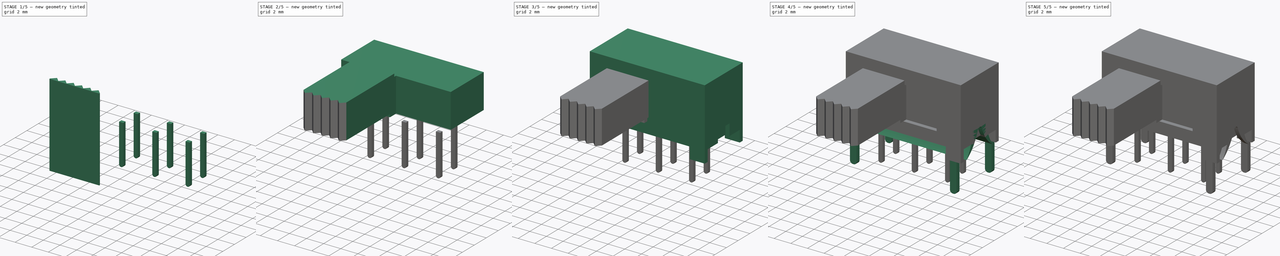
[diagram: build sequence overview — one tinted view per stage of 5, left to right]
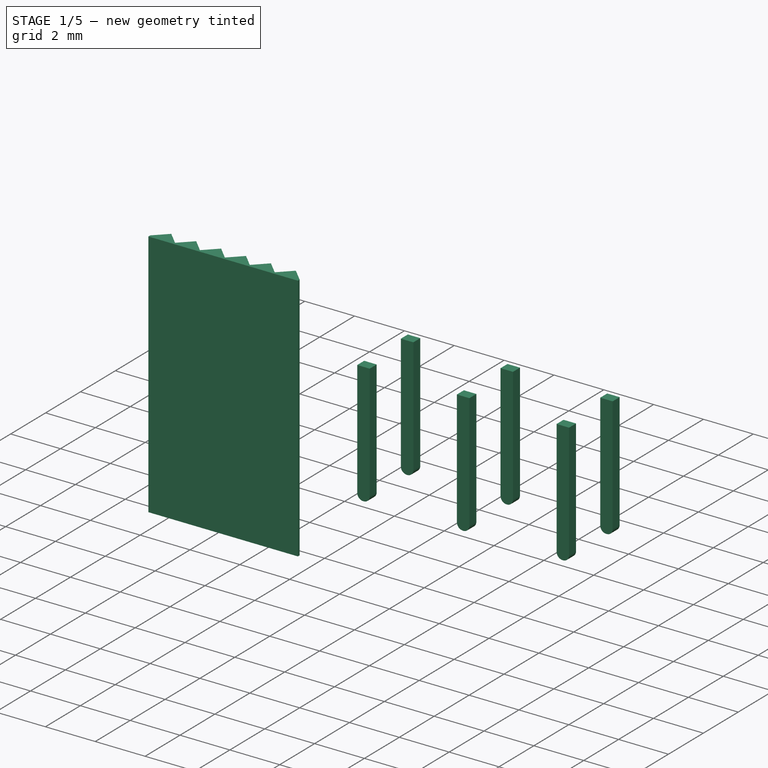
[diagram: stage 1 of 5 — iso view after this stage's code; geometry added in this stage tinted green]
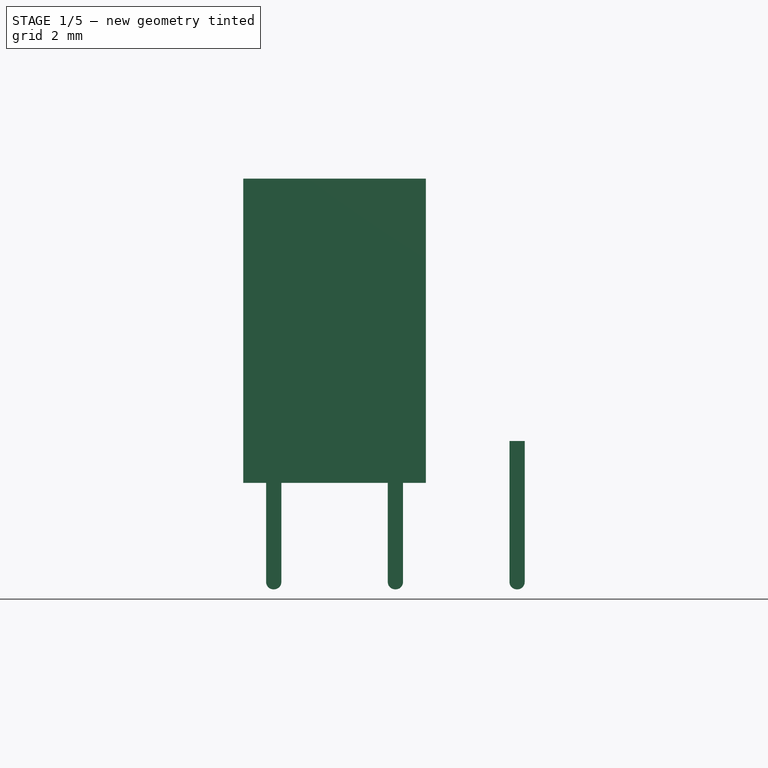
[diagram: stage 1 of 5 — front view after this stage's code; geometry added in this stage tinted green]
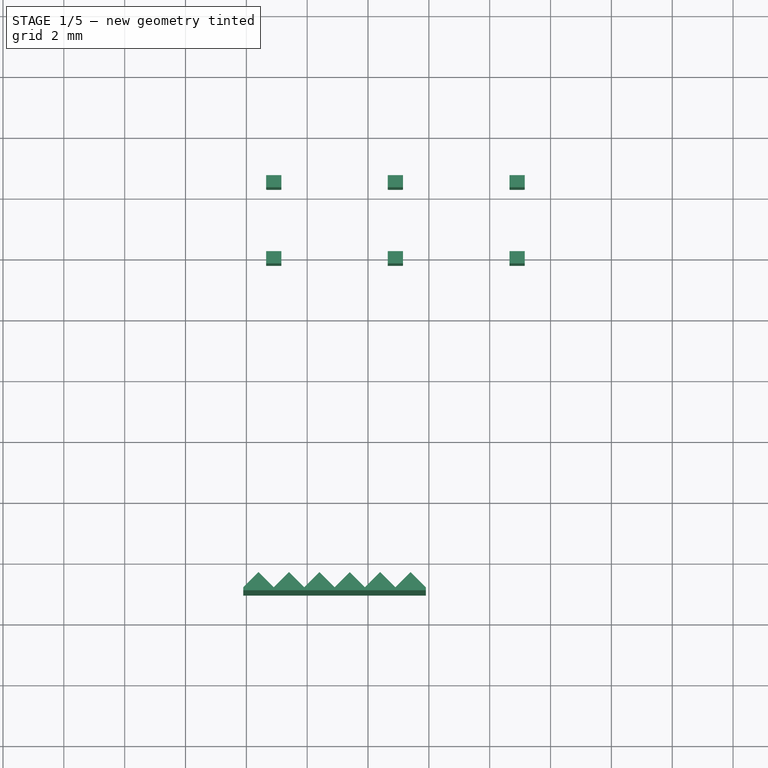
[diagram: stage 1 of 5 — top view after this stage's code; geometry added in this stage tinted green]
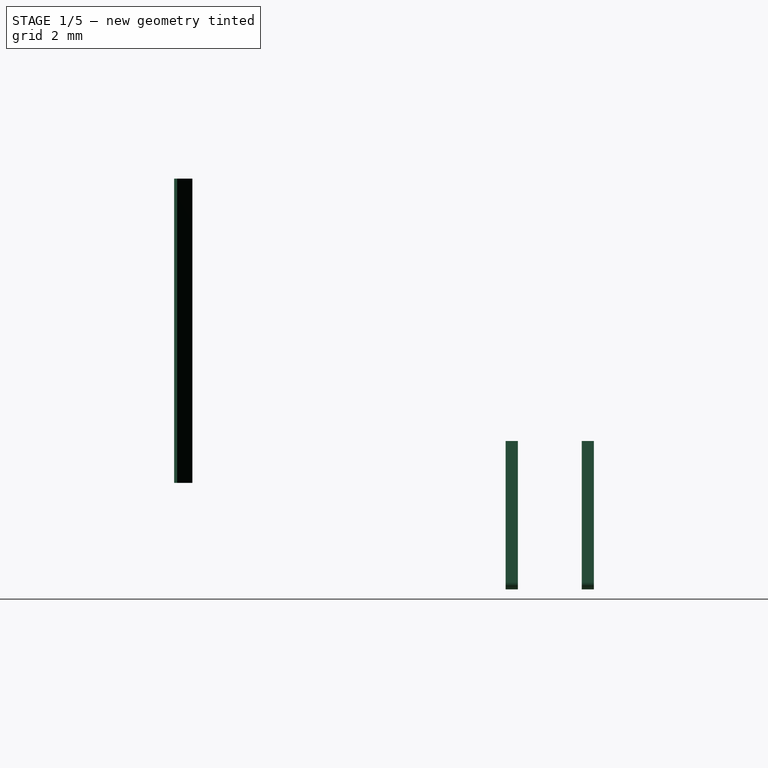
[diagram: stage 1 of 5 — right view after this stage's code; geometry added in this stage tinted green]
FCSTD DOCUMENT  (FreeCAD 0.15R4671 (Git))
Label: EG2219
License: All rights reserved
LicenseURL: http://es.wikipedia.org/wiki/Todos_los_derechos_reservados
objects: Sketcher::SketchObject×10, PartDesign::Pad×6, PartDesign::Pocket×5, Part::Box×3, Part::Cut×2, PartDesign::Fillet×1, Part::Fillet×1, Part::FeaturePython×1, Part::MultiFuse×1
note: 41 computed .brp shape members not serialized (recipe doc carries the construction recipe); baked Part::Feature solids carry a one-line shape summary decoded from their .brp

FEATURE [Sketcher::SketchObject] Sketch009
  Placement = pos=(1.9,-9,0) rot=(0,0,1;0rad)
  sketch-geometry (16):
    g0: LineSegment StartX=0 StartY=0 StartZ=0 EndX=0.5 EndY=0.5 EndZ=0
    g1: LineSegment StartX=0.5 StartY=0.5 StartZ=0 EndX=1 EndY=0 EndZ=0
    g2: LineSegment StartX=1.5 StartY=0.5 StartZ=0 EndX=2 EndY=0 EndZ=0
    g3: LineSegment StartX=1 StartY=0 StartZ=0 EndX=1.5 EndY=0.5 EndZ=0
    g4: LineSegment StartX=2 StartY=0 StartZ=0 EndX=2.5 EndY=0.5 EndZ=0
    g5: LineSegment StartX=2.5 StartY=0.5 StartZ=0 EndX=3 EndY=0 EndZ=0
    g6: LineSegment StartX=3 StartY=0 StartZ=0 EndX=3.5 EndY=0.5 EndZ=0
    g7: LineSegment StartX=3.5 StartY=0.5 StartZ=0 EndX=4 EndY=0 EndZ=0
    g8: LineSegment StartX=4 StartY=0 StartZ=0 EndX=4.5 EndY=0.5 EndZ=0
    g9: LineSegment StartX=4.5 StartY=0.5 StartZ=0 EndX=5 EndY=0 EndZ=0
    g10: LineSegment StartX=6 StartY=-0.1 StartZ=0 EndX=0 EndY=-0.1 EndZ=0
    g11: LineSegment StartX=0 StartY=-0.1 StartZ=0 EndX=0 EndY=0 EndZ=0
    g12: LineSegment StartX=5 StartY=0 StartZ=0 EndX=5.5 EndY=0.5 EndZ=0
    g13: LineSegment StartX=5.5 StartY=0.5 StartZ=0 EndX=6 EndY=0 EndZ=0
    g14: LineSegment StartX=6 StartY=0 StartZ=0 EndX=6 EndY=-0.1 EndZ=0
    g15: LineSegment [constr] StartX=0.5 StartY=0.5 StartZ=0 EndX=5.5 EndY=0.5 EndZ=0
  constraints (47):
    c: Coincident(g-1,g0)
    c: Coincident(g0,g1)
    c: PointOnObject(g1,g-1)
    c: Angle(g0,g1) = 1.5708
    c: Equal(g1,g0)
    c: PointOnObject(g2,g-1)
    c: Coincident(g1,g3)
    c: Coincident(g3,g2)
    c: Coincident(g2,g4)
    c: Coincident(g4,g5)
    c: Coincident(g5,g6)
    c: Coincident(g6,g7)
    c: PointOnObject(g7,g-1)
    c: Coincident(g7,g8)
    c: Coincident(g8,g9)
    c: PointOnObject(g9,g-1)
    c: Horizontal(g10)
    c: Coincident(g10,g11)
    c: Coincident(g11,g-1)
    c: Vertical(g11)
    c: DistanceX(g10) = -6
    c: DistanceY(g-1,g0) = 0.5
    c: Equal(g0,g1)
    c: Equal(g1,g3)
    c: Equal(g3,g2)
    c: Equal(g2,g4)
    c: Equal(g4,g5)
    c: Equal(g5,g6)
    c: Equal(g6,g7)
    c: Equal(g7,g8)
    c: Equal(g8,g9)
    c: DistanceY(g11) = 0.1
    c: PointOnObject(g5,g-1)
    c: Coincident(g12,g9)
    c: Coincident(g12,g13)
    c: PointOnObject(g13,g-1)
    c: Coincident(g13,g14)
    c: Coincident(g14,g10)
    c: Vertical(g14)
    c: Equal(g9,g12)
    c: Equal(g12,g13)
    c: Coincident(g15,g0)
    c: Coincident(g15,g12)
    c: Horizontal(g15)
    c: PointOnObject(g2,g15)
    c: PointOnObject(g4,g15)
    c: PointOnObject(g6,g15)
FEATURE [PartDesign::Pad] Pad005
  Length = 10
  Length2 = 100
  Placement = pos=(1.9,-9,0) rot=(0,0,1;0rad)
  Sketch = -> Sketch009
  Type = 0
FEATURE [Part::Box] Box002  label="Cubo002"
  Height = 4.875
  Length = 0.5
  Placement = pos=(2.65,1.8,-3.5) rot=(0,0,1;0rad)
  Width = 0.4
FEATURE [Part::Fillet] Fillet001
  Base = -> Box002
  Edges = 2 edges r=0.24: [Edge4,Edge8]
FEATURE [Part::FeaturePython] Array  label="Pins"  # Draft array (typed FeaturePython)
  Angle = 360
  ArrayType = 0
  Axis = (0,0,1)
  Base = -> Fillet001
  Center = (0,0,0)
  Fuse = false
  IntervalAxis = (0,0,0)
  IntervalX = (4,0,0)
  IntervalY = (0,2.5,0)
  IntervalZ = (0,0,0)
  NumberPolar = 1
  NumberX = 3
  NumberY = 2
  NumberZ = 1
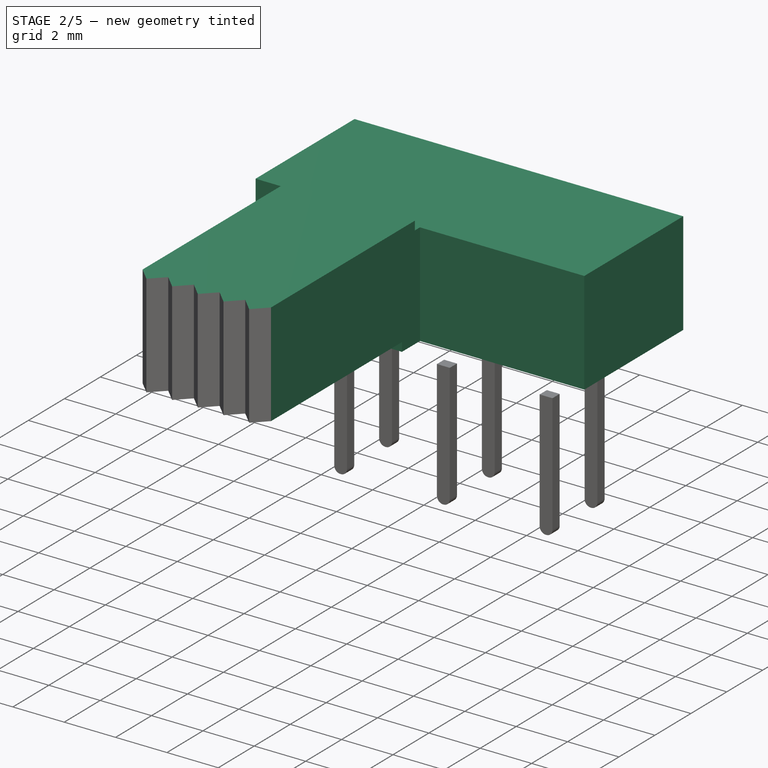
[diagram: stage 2 of 5 — iso view after this stage's code; geometry added in this stage tinted green]
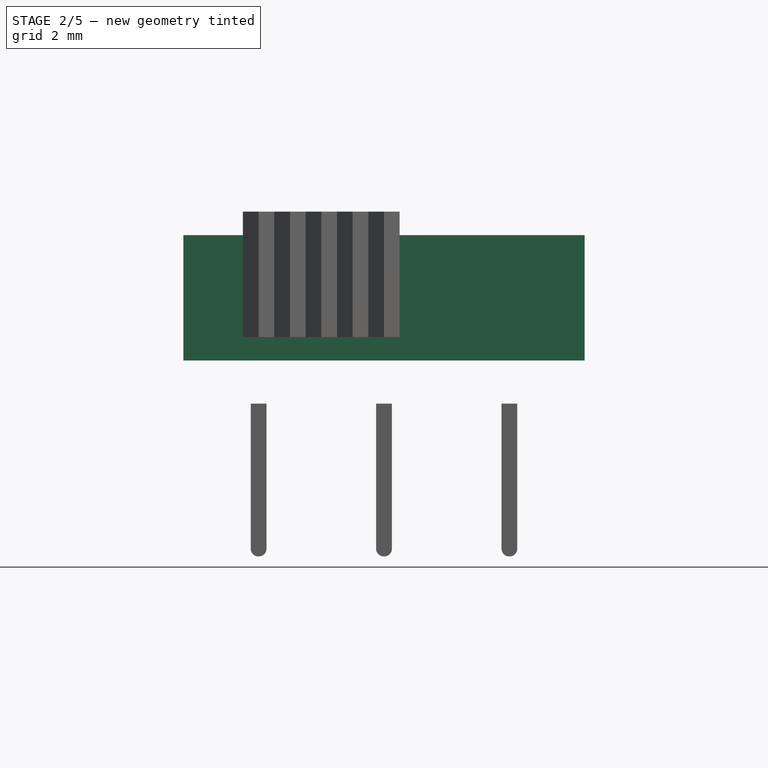
[diagram: stage 2 of 5 — front view after this stage's code; geometry added in this stage tinted green]
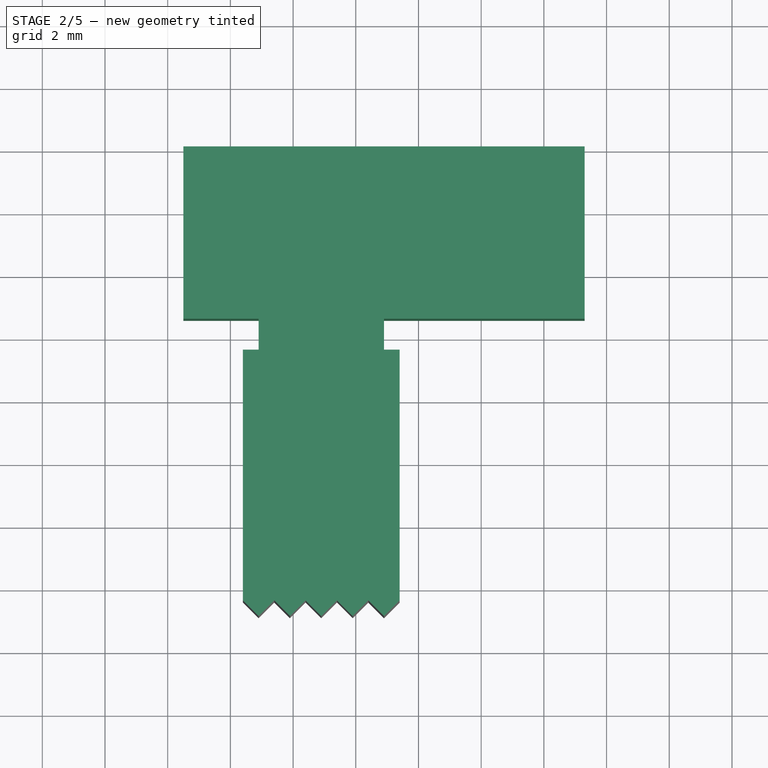
[diagram: stage 2 of 5 — top view after this stage's code; geometry added in this stage tinted green]
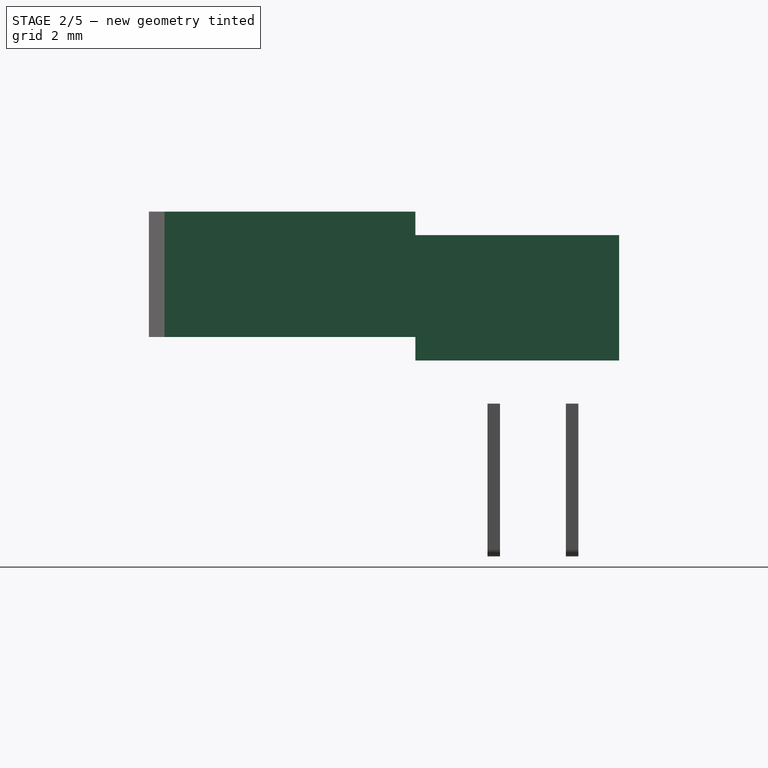
[diagram: stage 2 of 5 — right view after this stage's code; geometry added in this stage tinted green]
FEATURE [Part::Box] Box001  label="Cubo001"
  Height = 4
  Length = 12.8
  Placement = pos=(0.5,0.5,2.75) rot=(0,0,1;0rad)
  Width = 5.5
FEATURE [Sketcher::SketchObject] Sketch007
  ExternalGeometry = -> [Box001]
  Placement = pos=(0.5,0.5,2.75) rot=(1,0,0;1.5708rad)
  Support = -> Box001 [Face3]
  sketch-geometry (4):
    g0: LineSegment StartX=2.4 StartY=0 StartZ=0 EndX=2.4 EndY=4 EndZ=0
    g1: LineSegment StartX=2.4 StartY=4 StartZ=0 EndX=6.4 EndY=4 EndZ=0
    g2: LineSegment StartX=6.4 StartY=4 StartZ=0 EndX=6.4 EndY=0 EndZ=0
    g3: LineSegment StartX=6.4 StartY=0 StartZ=0 EndX=2.4 EndY=0 EndZ=0
  constraints (12):
    c: PointOnObject(g0,g-3)
    c: Vertical(g0)
    c: Coincident(g0,g1)
    c: Horizontal(g1)
    c: Coincident(g1,g2)
    c: PointOnObject(g2,g-3)
    c: Vertical(g2)
    c: Coincident(g2,g3)
    c: Coincident(g3,g0)
    c: DistanceY(g2) = -4
    c: DistanceX(g1) = 4
    c: DistanceX(g-1,g0) = 2.4
FEATURE [PartDesign::Pad] Pad003
  Length = 1
  Length2 = 100
  Placement = pos=(0.5,0.5,2.75) rot=(0,0,1;0rad)
  Sketch = -> Sketch007
  Type = 0
FEATURE [Sketcher::SketchObject] Sketch008
  ExternalGeometry = -> [Pad003]
  Placement = pos=(0.5,-0.5,2.75) rot=(1,0,0;1.5708rad)
  Support = -> Pad003 [Face7]
  sketch-geometry (6):
    g0: LineSegment StartX=1.9 StartY=0.75 StartZ=0 EndX=6.9 EndY=0.75 EndZ=0
    g1: LineSegment StartX=6.9 StartY=0.75 StartZ=0 EndX=6.9 EndY=4.75 EndZ=0
    g2: LineSegment StartX=6.9 StartY=4.75 StartZ=0 EndX=1.9 EndY=4.75 EndZ=0
    g3: LineSegment StartX=1.9 StartY=4.75 StartZ=0 EndX=1.9 EndY=0.75 EndZ=0
    g4: LineSegment [constr] StartX=2.4 StartY=4 StartZ=0 EndX=1.9 EndY=4 EndZ=0
    g5: LineSegment [constr] StartX=6.4 StartY=4 StartZ=0 EndX=6.9 EndY=4 EndZ=0
  constraints (18):
    c: Horizontal(g0)
    c: Coincident(g0,g1)
    c: Vertical(g1)
    c: Coincident(g1,g2)
    c: Horizontal(g2)
    c: Coincident(g2,g3)
    c: Coincident(g3,g0)
    c: Vertical(g3)
    c: DistanceX(g2) = -5
    c: DistanceY(g3) = -4
    c: Coincident(g4,g-5)
    c: PointOnObject(g4,g3)
    c: Horizontal(g4)
    c: Coincident(g5,g-6)
    c: PointOnObject(g5,g1)
    c: Horizontal(g5)
    c: Equal(g5,g4)
    c: DistanceY(g0,g-4) = -0.75
FEATURE [PartDesign::Pad] Pad004
  Length = 8.5
  Length2 = 100
  Placement = pos=(0.5,0.5,2.75) rot=(0,0,1;0rad)
  Sketch = -> Sketch008
  Type = 0
FEATURE [Part::Cut] Cut001  label="Slide"
  Base = -> Pad004
  Tool = -> Pad005
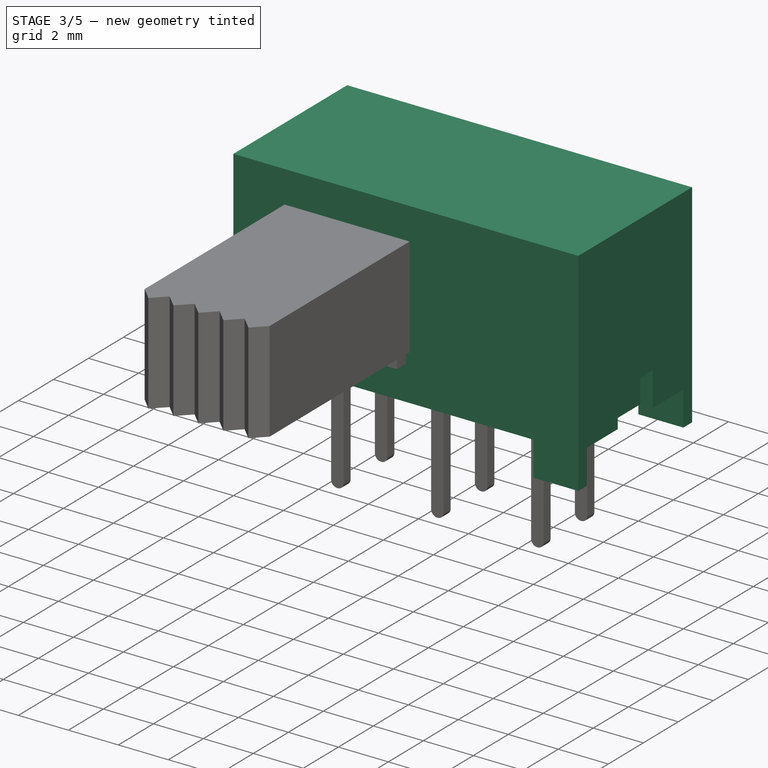
[diagram: stage 3 of 5 — iso view after this stage's code; geometry added in this stage tinted green]
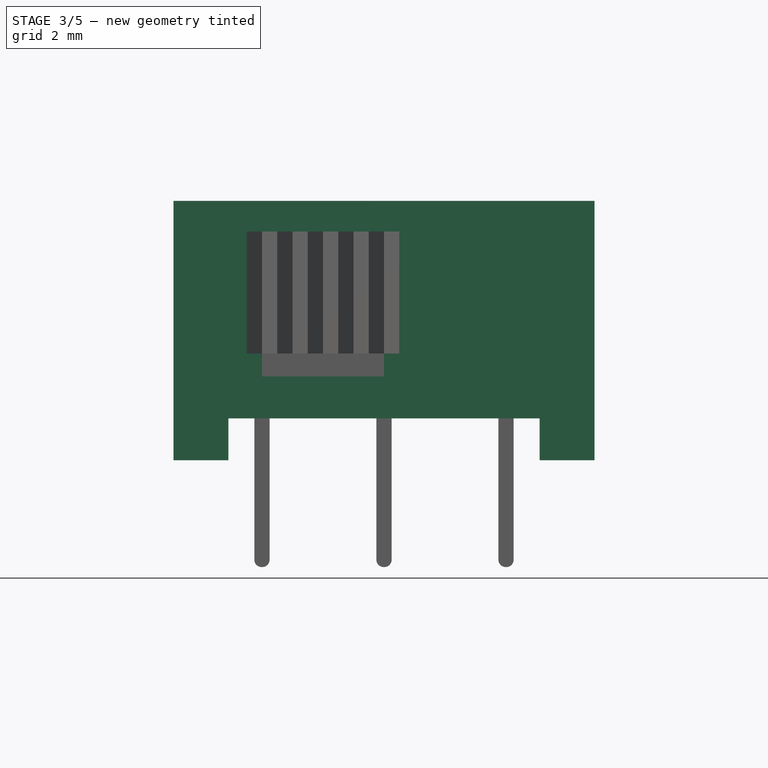
[diagram: stage 3 of 5 — front view after this stage's code; geometry added in this stage tinted green]
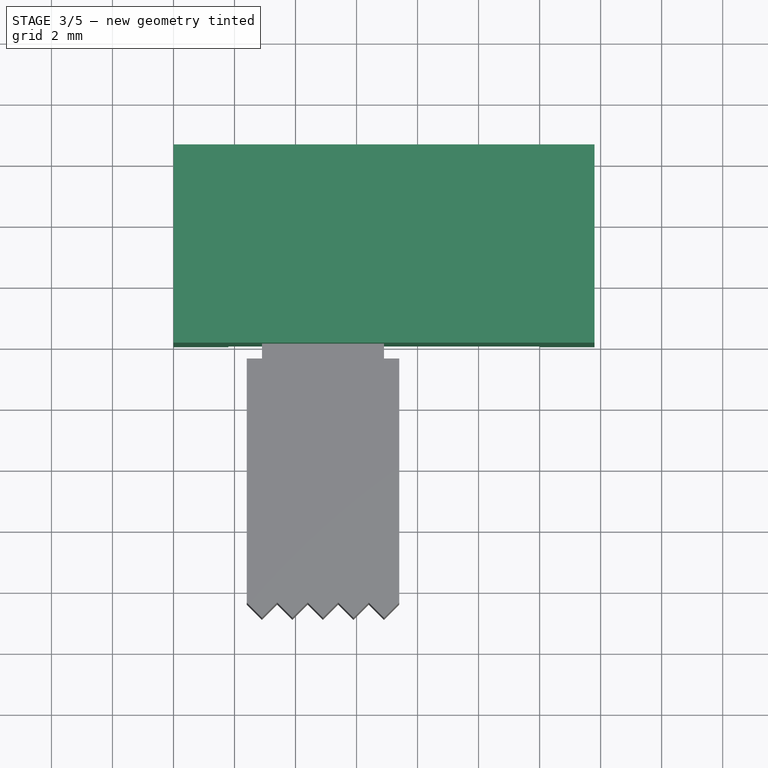
[diagram: stage 3 of 5 — top view after this stage's code; geometry added in this stage tinted green]
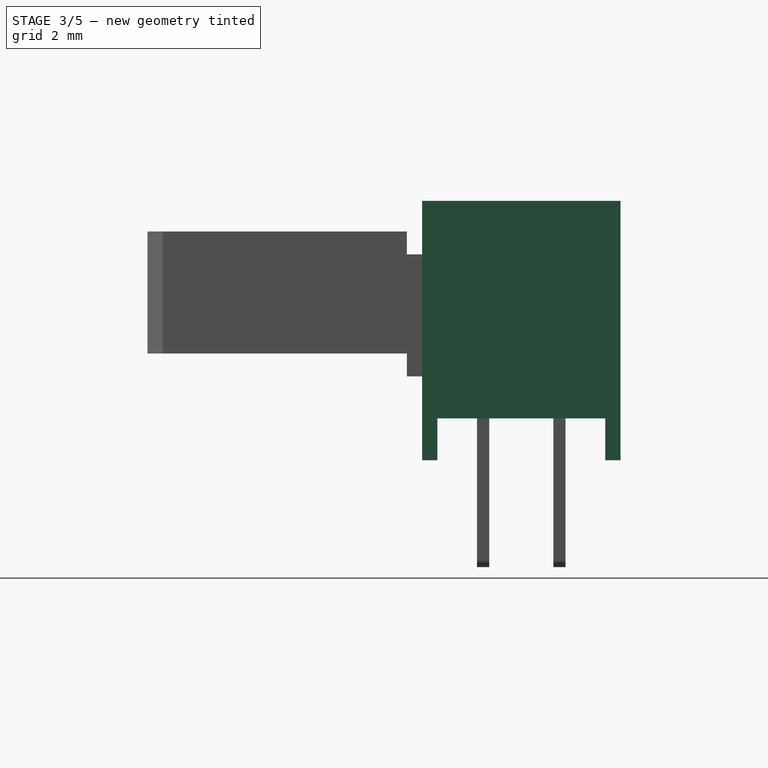
[diagram: stage 3 of 5 — right view after this stage's code; geometry added in this stage tinted green]
FEATURE [Sketcher::SketchObject] Sketch
  sketch-geometry (4):
    g0: LineSegment StartX=0 StartY=0 StartZ=0 EndX=13.8 EndY=0 EndZ=0
    g1: LineSegment StartX=13.8 StartY=0 StartZ=0 EndX=13.8 EndY=6.5 EndZ=0
    g2: LineSegment StartX=13.8 StartY=6.5 StartZ=0 EndX=0 EndY=6.5 EndZ=0
    g3: LineSegment StartX=0 StartY=6.5 StartZ=0 EndX=0 EndY=0 EndZ=0
  constraints (11):
    c: Coincident(g0,g1)
    c: Coincident(g1,g2)
    c: Coincident(g2,g3)
    c: Coincident(g3,g0)
    c: Horizontal(g0)
    c: Horizontal(g2)
    c: Vertical(g1)
    c: Vertical(g3)
    c: Coincident(g0,g-1)
    c: DistanceX(g2) = -13.8
    c: DistanceY(g1) = 6.5
FEATURE [PartDesign::Pad] Pad
  Length = 8.5
  Length2 = 100
  Sketch = -> Sketch
  Type = 0
FEATURE [Sketcher::SketchObject] Sketch001
  ExternalGeometry = -> [Pad]
  Placement = pos=(0,0,0) rot=(1,0,0;3.14159rad)
  Support = -> Pad [Face5]
  sketch-geometry (12):
    g0: LineSegment StartX=0 StartY=-0.5 StartZ=0 EndX=1.8 EndY=-0.5 EndZ=0
    g1: LineSegment StartX=1.8 StartY=-0.5 StartZ=0 EndX=1.8 EndY=0 EndZ=0
    g2: LineSegment StartX=12 StartY=0 StartZ=0 EndX=12 EndY=-0.5 EndZ=0
    g3: LineSegment StartX=12 StartY=-0.5 StartZ=0 EndX=13.8 EndY=-0.5 EndZ=0
    g4: LineSegment StartX=0 StartY=-6 StartZ=0 EndX=1.8 EndY=-6 EndZ=0
    g5: LineSegment StartX=1.8 StartY=-6 StartZ=0 EndX=1.8 EndY=-6.5 EndZ=0
    g6: LineSegment StartX=13.8 StartY=-6 StartZ=0 EndX=12 EndY=-6 EndZ=0
    g7: LineSegment StartX=12 StartY=-6 StartZ=0 EndX=12 EndY=-6.5 EndZ=0
    g8: LineSegment StartX=1.8 StartY=0 StartZ=0 EndX=12 EndY=0 EndZ=0
    g9: LineSegment StartX=13.8 StartY=-0.5 StartZ=0 EndX=13.8 EndY=-6 EndZ=0
    g10: LineSegment StartX=12 StartY=-6.5 StartZ=0 EndX=1.8 EndY=-6.5 EndZ=0
    g11: LineSegment StartX=0 StartY=-6 StartZ=0 EndX=0 EndY=-0.5 EndZ=0
  constraints (36):
    c: PointOnObject(g0,g-5)
    c: Horizontal(g0)
    c: PointOnObject(g1,g-4)
    c: Vertical(g1)
    c: Coincident(g1,g0)
    c: PointOnObject(g2,g-4)
    c: Vertical(g2)
    c: Coincident(g3,g2)
    c: PointOnObject(g3,g-3)
    c: Horizontal(g3)
    c: PointOnObject(g4,g-5)
    c: Horizontal(g4)
    c: Coincident(g5,g4)
    c: PointOnObject(g5,g-6)
    c: Vertical(g5)
    c: PointOnObject(g6,g-3)
    c: Horizontal(g6)
    c: Coincident(g7,g6)
    c: PointOnObject(g7,g-6)
    c: Vertical(g7)
    c: Equal(g2,g1)
    c: Equal(g1,g5)
    c: Equal(g5,g7)
    c: Equal(g0,g3)
    c: Equal(g3,g6)
    c: Equal(g6,g4)
    c: DistanceY(g1) = 0.5
    c: DistanceX(g0) = 1.8
    c: Coincident(g8,g1)
    c: Coincident(g8,g2)
    c: Coincident(g9,g3)
    c: Coincident(g9,g6)
    c: Coincident(g10,g7)
    c: Coincident(g10,g5)
    c: Coincident(g11,g4)
    c: Coincident(g11,g0)
FEATURE [PartDesign::Pocket] Pocket
  Length = 2.75
  Sketch = -> Sketch001
  Type = 0
FEATURE [Part::Box] Box  label="Cubo"
  Height = 1.375
  Length = 13.8
  Placement = pos=(0,0,1.375) rot=(0,0,1;0rad)
  Width = 6.5
FEATURE [Sketcher::SketchObject] Sketch006
  ExternalGeometry = -> [Box]
  Placement = pos=(0,0,1.375) rot=(1,0,0;3.14159rad)
  Support = -> Box [Face5]
  sketch-geometry (11):
    g0: LineSegment StartX=0 StartY=-2.25 StartZ=0 EndX=0.5 EndY=-2.25 EndZ=0
    g1: LineSegment StartX=0.5 StartY=-2.25 StartZ=0 EndX=0.5 EndY=-4.25 EndZ=0
    g2: LineSegment StartX=0.5 StartY=-4.25 StartZ=0 EndX=0 EndY=-4.25 EndZ=0
    g3: LineSegment StartX=0 StartY=-4.25 StartZ=0 EndX=0 EndY=-2.25 EndZ=0
    g4: LineSegment StartX=13.8 StartY=-2.25 StartZ=0 EndX=13.8 EndY=-4.25 EndZ=0
    g5: LineSegment StartX=13.8 StartY=-4.25 StartZ=0 EndX=13.3 EndY=-4.25 EndZ=0
    g6: LineSegment StartX=13.3 StartY=-4.25 StartZ=0 EndX=13.3 EndY=-2.25 EndZ=0
    g7: LineSegment StartX=13.3 StartY=-2.25 StartZ=0 EndX=13.8 EndY=-2.25 EndZ=0
    g8: LineSegment [constr] StartX=0.5 StartY=-2.25 StartZ=0 EndX=13.3 EndY=-2.25 EndZ=0
    g9: LineSegment [constr] StartX=13.3 StartY=-2.25 StartZ=0 EndX=13.3 EndY=0 EndZ=0
    g10: LineSegment [constr] StartX=13.3 StartY=-4.25 StartZ=0 EndX=13.3 EndY=-6.5 EndZ=0
  constraints (32):
    c: PointOnObject(g0,g-3)
    c: Horizontal(g0)
    c: Coincident(g0,g1)
    c: Vertical(g1)
    c: Coincident(g1,g2)
    c: PointOnObject(g2,g-3)
    c: Coincident(g2,g3)
    c: Coincident(g3,g0)
    c: Horizontal(g2)
    c: PointOnObject(g4,g-4)
    c: PointOnObject(g4,g-4)
    c: Coincident(g4,g5)
    c: Horizontal(g5)
    c: Coincident(g5,g6)
    c: Vertical(g6)
    c: Coincident(g6,g7)
    c: Coincident(g7,g4)
    c: Horizontal(g7)
    c: Equal(g6,g1)
    c: Equal(g0,g7)
    c: DistanceX(g0) = 0.5
    c: Coincident(g8,g0)
    c: Coincident(g8,g6)
    c: Horizontal(g8)
    c: Coincident(g9,g6)
    c: PointOnObject(g9,g-5)
    c: Vertical(g9)
    c: Coincident(g10,g5)
    c: PointOnObject(g10,g-6)
    c: Vertical(g10)
    c: Equal(g10,g9)
    c: DistanceY(g1) = -2
FEATURE [PartDesign::Pocket] Pocket004
  Length = 5
  Placement = pos=(0,0,1.375) rot=(0,0,1;0rad)
  Sketch = -> Sketch006
  Type = 1
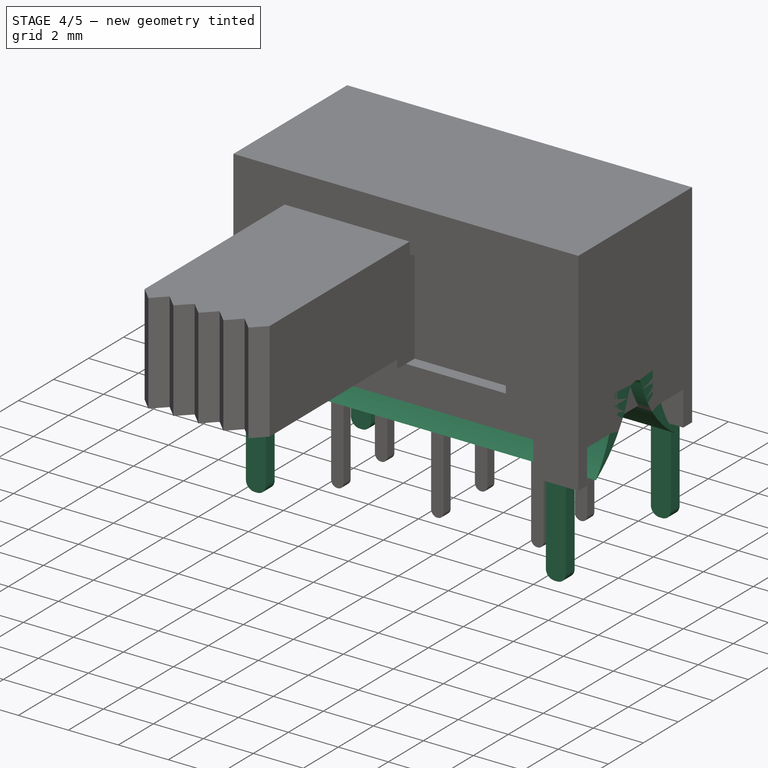
[diagram: stage 4 of 5 — iso view after this stage's code; geometry added in this stage tinted green]
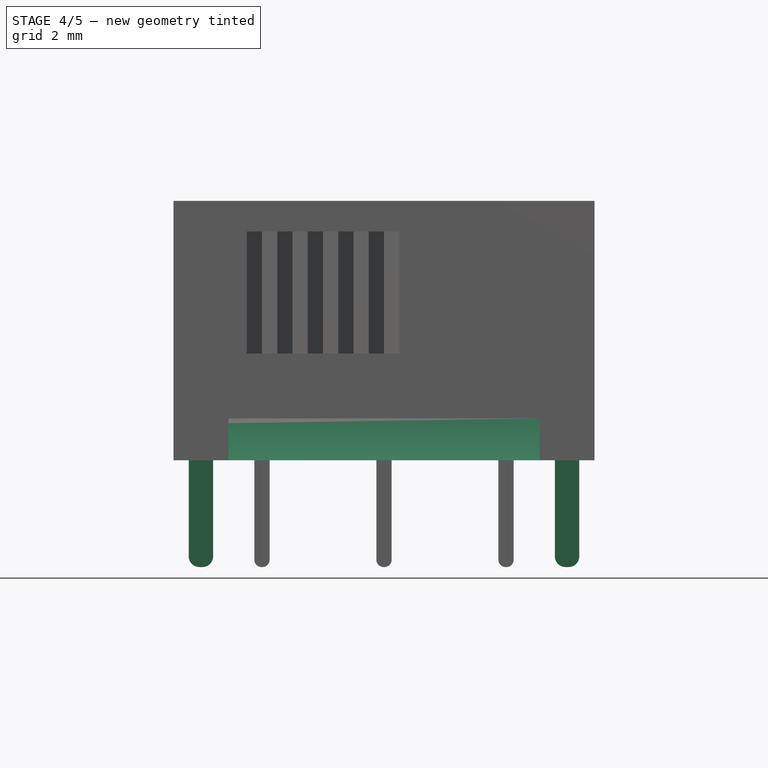
[diagram: stage 4 of 5 — front view after this stage's code; geometry added in this stage tinted green]
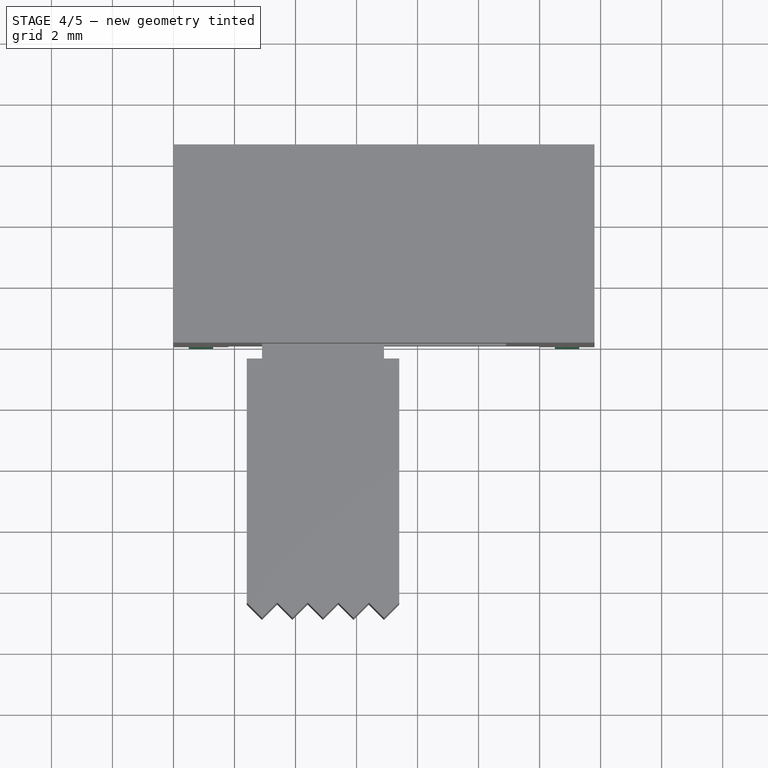
[diagram: stage 4 of 5 — top view after this stage's code; geometry added in this stage tinted green]
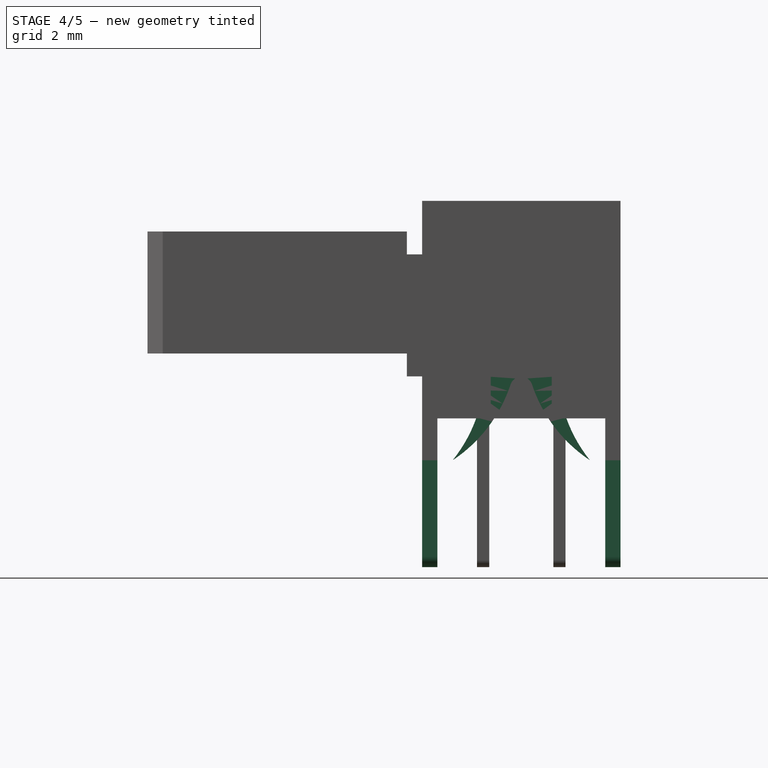
[diagram: stage 4 of 5 — right view after this stage's code; geometry added in this stage tinted green]
FEATURE [Sketcher::SketchObject] Sketch002
  ExternalGeometry = -> [Pocket]
  Placement = pos=(0,0,2.75) rot=(1,0,0;3.14159rad)
  Support = -> Pocket [Face4]
  sketch-geometry (10):
    g0: LineSegment StartX=0.5 StartY=-0.5 StartZ=0 EndX=0.5 EndY=-6 EndZ=0
    g1: LineSegment StartX=0.5 StartY=-6 StartZ=0 EndX=13.3 EndY=-6 EndZ=0
    g2: LineSegment StartX=13.3 StartY=-6 StartZ=0 EndX=13.3 EndY=-0.5 EndZ=0
    g3: LineSegment [constr] StartX=0.5 StartY=-0.5 StartZ=0 EndX=0 EndY=-0.5 EndZ=0
    g4: LineSegment [constr] StartX=13.3 StartY=-6 StartZ=0 EndX=13.8 EndY=-6 EndZ=0
    g5: LineSegment StartX=2.9 StartY=-0.5 StartZ=0 EndX=2.9 EndY=0 EndZ=0
    g6: LineSegment StartX=10.9 StartY=0 StartZ=0 EndX=10.9 EndY=-0.5 EndZ=0
    g7: LineSegment StartX=0.5 StartY=-0.5 StartZ=0 EndX=2.9 EndY=-0.5 EndZ=0
    g8: LineSegment StartX=13.3 StartY=-0.5 StartZ=0 EndX=10.9 EndY=-0.5 EndZ=0
    g9: LineSegment StartX=2.9 StartY=0 StartZ=0 EndX=10.9 EndY=0 EndZ=0
  constraints (28):
    c: Vertical(g0)
    c: PointOnObject(g0,g-8)
    c: Coincident(g1,g0)
    c: Coincident(g2,g1)
    c: PointOnObject(g2,g-7)
    c: Vertical(g2)
    c: Coincident(g3,g0)
    c: Horizontal(g3)
    c: Equal(g-9,g3)
    c: Coincident(g3,g-9)
    c: Coincident(g4,g1)
    c: Coincident(g4,g-6)
    c: Horizontal(g4)
    c: Equal(g4,g-9)
    c: PointOnObject(g5,g-4)
    c: Vertical(g5)
    c: PointOnObject(g6,g-4)
    c: Vertical(g6)
    c: Coincident(g7,g0)
    c: Coincident(g7,g5)
    c: Horizontal(g7)
    c: Coincident(g8,g2)
    c: Coincident(g8,g6)
    c: Horizontal(g8)
    c: Equal(g8,g7)
    c: DistanceX(g5,g6) = 8
    c: Coincident(g9,g5)
    c: Coincident(g9,g6)
FEATURE [PartDesign::Pocket] Pocket001
  Length = 4
  Sketch = -> Sketch002
  Type = 0
FEATURE [Sketcher::SketchObject] Sketch003
  ExternalGeometry = -> [Pocket001]
  Placement = pos=(0,0,0) rot=(1,0,0;3.14159rad)
  Support = -> Pocket001 [Face2]
  sketch-geometry (20):
    g0: LineSegment StartX=0.5 StartY=0 StartZ=0 EndX=0.5 EndY=-0.5 EndZ=0
    g1: LineSegment StartX=1.3 StartY=0 StartZ=0 EndX=1.3 EndY=-0.5 EndZ=0
    g2: LineSegment StartX=12.5 StartY=0 StartZ=0 EndX=12.5 EndY=-0.5 EndZ=0
    g3: LineSegment StartX=12.5 StartY=-0.5 StartZ=0 EndX=13.3 EndY=-0.5 EndZ=0
    g4: LineSegment StartX=13.3 StartY=-0.5 StartZ=0 EndX=13.3 EndY=0 EndZ=0
    g5: LineSegment StartX=13.3 StartY=0 StartZ=0 EndX=12.5 EndY=0 EndZ=0
    g6: LineSegment StartX=12.5 StartY=-6 StartZ=0 EndX=12.5 EndY=-6.5 EndZ=0
    g7: LineSegment StartX=12.5 StartY=-6.5 StartZ=0 EndX=13.3 EndY=-6.5 EndZ=0
    g8: LineSegment StartX=13.3 StartY=-6.5 StartZ=0 EndX=13.3 EndY=-6 EndZ=0
    g9: LineSegment StartX=13.3 StartY=-6 StartZ=0 EndX=12.5 EndY=-6 EndZ=0
    g10: LineSegment StartX=0.5 StartY=-6 StartZ=0 EndX=0.5 EndY=-6.5 EndZ=0
    g11: LineSegment StartX=0.5 StartY=-6.5 StartZ=0 EndX=1.3 EndY=-6.5 EndZ=0
    g12: LineSegment StartX=1.3 StartY=-6.5 StartZ=0 EndX=1.3 EndY=-6 EndZ=0
    g13: LineSegment StartX=1.3 StartY=-6 StartZ=0 EndX=0.5 EndY=-6 EndZ=0
    g14: LineSegment StartX=0.5 StartY=0 StartZ=0 EndX=1.3 EndY=0 EndZ=0
    g15: LineSegment StartX=0.5 StartY=-0.5 StartZ=0 EndX=1.3 EndY=-0.5 EndZ=0
    g16: LineSegment [constr] StartX=13.3 StartY=-6 StartZ=0 EndX=13.3 EndY=-0.5 EndZ=0
    g17: LineSegment [constr] StartX=0.5 StartY=-0.5 StartZ=0 EndX=0.5 EndY=-6 EndZ=0
    g18: LineSegment [constr] StartX=1.3 StartY=-6 StartZ=0 EndX=1.3 EndY=-0.5 EndZ=0
    g19: LineSegment [constr] StartX=12.5 StartY=-0.5 StartZ=0 EndX=12.5 EndY=-6 EndZ=0
  constraints (57):
    c: PointOnObject(g0,g-4)
    c: PointOnObject(g0,g-3)
    c: Vertical(g0)
    c: PointOnObject(g1,g-4)
    c: PointOnObject(g1,g-3)
    c: Vertical(g1)
    c: PointOnObject(g2,g-5)
    c: PointOnObject(g2,g-6)
    c: Vertical(g2)
    c: Coincident(g2,g3)
    c: PointOnObject(g3,g-6)
    c: Coincident(g3,g4)
    c: PointOnObject(g4,g-5)
    c: Vertical(g4)
    c: Coincident(g4,g5)
    c: Coincident(g5,g2)
    c: PointOnObject(g6,g-7)
    c: PointOnObject(g6,g-8)
    c: Vertical(g6)
    c: Coincident(g6,g7)
    c: PointOnObject(g7,g-8)
    c: Coincident(g7,g8)
    c: PointOnObject(g8,g-7)
    c: Vertical(g8)
    c: Coincident(g8,g9)
    c: Coincident(g9,g6)
    c: PointOnObject(g10,g-9)
    c: PointOnObject(g10,g-10)
    c: Vertical(g10)
    c: Coincident(g10,g11)
    c: PointOnObject(g11,g-10)
    c: Coincident(g11,g12)
    c: PointOnObject(g12,g-9)
    c: Vertical(g12)
    c: Coincident(g12,g13)
    c: Coincident(g13,g10)
    c: Coincident(g14,g0)
    c: Coincident(g14,g1)
    c: Coincident(g15,g0)
    c: Horizontal(g15)
    c: Coincident(g15,g1)
    c: DistanceX(g0,g1) = 0.8
    c: DistanceX(g-1,g0) = 0.5
    c: DistanceX(g4,g2) = -0.8
    c: DistanceX(g4,g-5) = 0.5
    c: Coincident(g16,g8)
    c: Coincident(g16,g3)
    c: Vertical(g16)
    c: Coincident(g17,g0)
    c: Coincident(g17,g10)
    c: Vertical(g17)
    c: Coincident(g18,g12)
    c: Coincident(g18,g1)
    c: Vertical(g18)
    c: Coincident(g19,g2)
    c: Coincident(g19,g6)
    c: Vertical(g19)
FEATURE [PartDesign::Pad] Pad001
  Length = 3.5
  Length2 = 100
  Sketch = -> Sketch003
  Type = 0
FEATURE [PartDesign::Fillet] Fillet
  Base = -> Pad001 [Edge91,Edge110,Edge61,Edge18,Edge116,Edge114,Edge103,Edge101]
  Radius = 0.35
FEATURE [Sketcher::SketchObject] Sketch004
  ExternalGeometry = -> [Fillet]
  Placement = pos=(0,0,0) rot=(0.57735,-0.57735,-0.57735;2.0944rad)
  Support = -> Fillet [Face14]
  sketch-geometry (13):
    g0: ArcOfCircle CenterX=-9.23095 CenterY=3 CenterZ=0 NormalX=0 NormalY=0 NormalZ=1 Radius=4.78748 StartAngle=5.60596 EndAngle=6.23094
    g1: LineSegment [constr] StartX=-6 StartY=0 StartZ=0 EndX=-0.5 EndY=0 EndZ=0
    g2: ArcOfCircle CenterX=2.73095 CenterY=3 CenterZ=0 NormalX=0 NormalY=0 NormalZ=1 Radius=4.78748 StartAngle=3.19384 EndAngle=3.81882
    g3: LineSegment [constr] StartX=-9.23095 StartY=3 StartZ=0 EndX=2.73095 EndY=3 EndZ=0
    g4: ArcOfCircle CenterX=-3.25 CenterY=2.37 CenterZ=0 NormalX=0 NormalY=0 NormalZ=1 Radius=0.368801 StartAngle=0.320677 EndAngle=2.82092
    g5: LineSegment [constr] StartX=-3.6 StartY=2.48625 StartZ=0 EndX=-2.9 EndY=2.48625 EndZ=0
    g6: ArcOfCircle CenterX=-8.15752 CenterY=4 CenterZ=0 NormalX=0 NormalY=0 NormalZ=1 Radius=4.80233 StartAngle=5.29881 EndAngle=5.96251
    g7: ArcOfCircle CenterX=1.65752 CenterY=4 CenterZ=0 NormalX=0 NormalY=0 NormalZ=1 Radius=4.80233 StartAngle=3.46227 EndAngle=4.12597
    g8: LineSegment [constr] StartX=-8.15752 StartY=4 StartZ=0 EndX=1.65752 EndY=4 EndZ=0
    g9: LineSegment [constr] StartX=-3.6 StartY=2.48625 StartZ=0 EndX=-6 EndY=2.48625 EndZ=0
    g10: LineSegment [constr] StartX=-2.9 StartY=2.48625 StartZ=0 EndX=-0.5 EndY=2.48625 EndZ=0
    g11: LineSegment StartX=-4.45 StartY=2.75 StartZ=0 EndX=-2.05 EndY=2.75 EndZ=0
    g12: LineSegment StartX=-4.45 StartY=2.75 StartZ=0 EndX=-2.05 EndY=2.75 EndZ=0
  constraints (39):
    c: PointOnObject(g0,g-3)
    c: Coincident(g1,g-4)
    c: Coincident(g1,g-5)
    c: PointOnObject(g0,g1)
    c: DistanceX(g1,g0) = 0.5
    c: PointOnObject(g2,g1)
    c: PointOnObject(g2,g-3)
    c: Equal(g2,g0)
    c: Coincident(g3,g0)
    c: Coincident(g3,g2)
    c: Horizontal(g3)
    c: DistanceX(g2,g1) = 0.5
    c: DistanceX(g2,g0) = -2.4
    c: Coincident(g5,g4)
    c: Coincident(g5,g4)
    c: Horizontal(g5)
    c: Coincident(g6,g4)
    c: Coincident(g6,g0)
    c: Tangent(g6,g4)
    c: Coincident(g7,g4)
    c: Coincident(g7,g2)
    c: DistanceY(g0,g1) = -3
    c: DistanceY(g6,g1) = -4
    c: Coincident(g8,g6)
    c: Coincident(g8,g7)
    c: Horizontal(g8)
    c: Coincident(g9,g4)
    c: PointOnObject(g9,g-4)
    c: Horizontal(g9)
    c: Coincident(g10,g4)
    c: Horizontal(g10)
    c: PointOnObject(g10,g-5)
    c: Equal(g10,g9)
    c: DistanceX(g5) = 0.7
    c: Coincident(g11,g0)
    c: Coincident(g11,g2)
    c: DistanceY(g2,g4) = -0.38
    c: Coincident(g12,g0)
    c: Coincident(g12,g2)
FEATURE [PartDesign::Pad] Pad002
  Length = 13.8
  Length2 = 100
  Reversed = true
  Sketch = -> Sketch004
  Type = 0
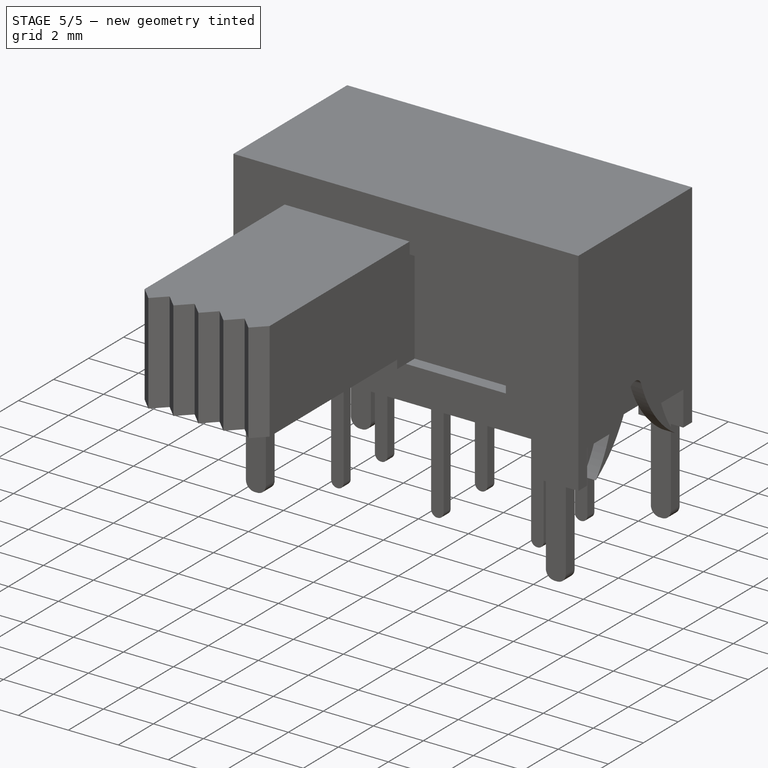
[diagram: stage 5 of 5 — iso view after this stage's code; geometry added in this stage tinted green]
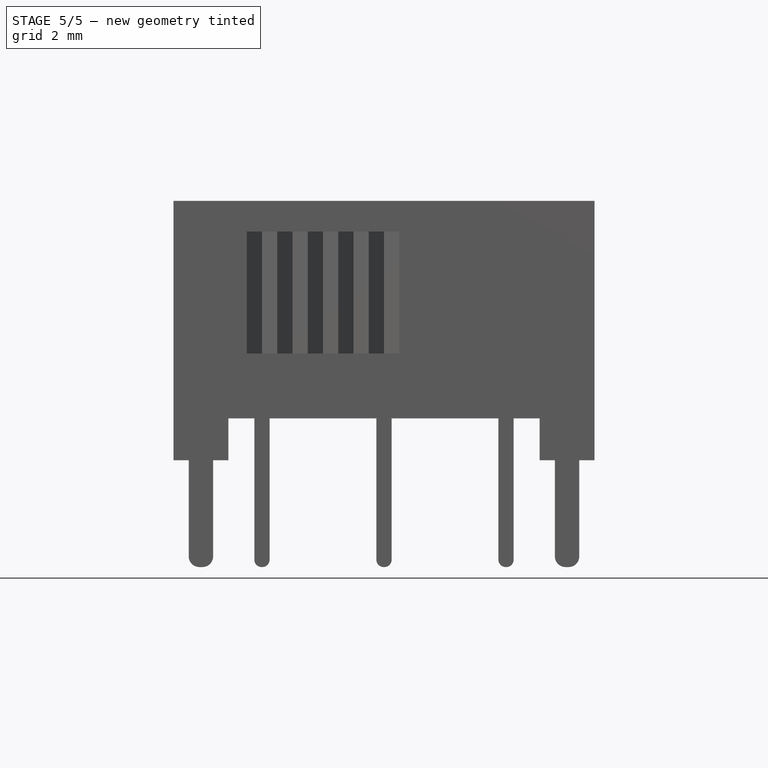
[diagram: stage 5 of 5 — front view after this stage's code; geometry added in this stage tinted green]
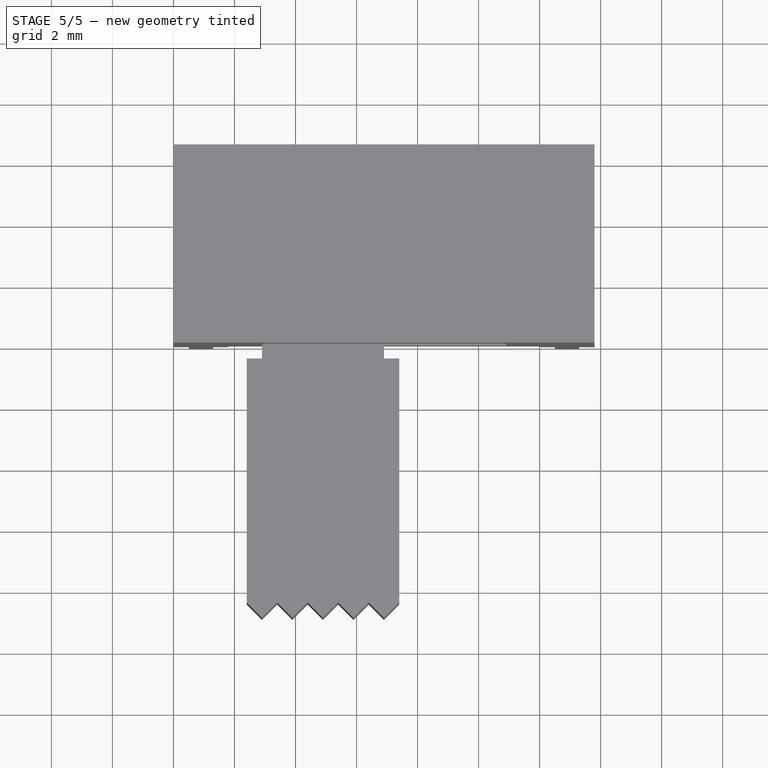
[diagram: stage 5 of 5 — top view after this stage's code; geometry added in this stage tinted green]
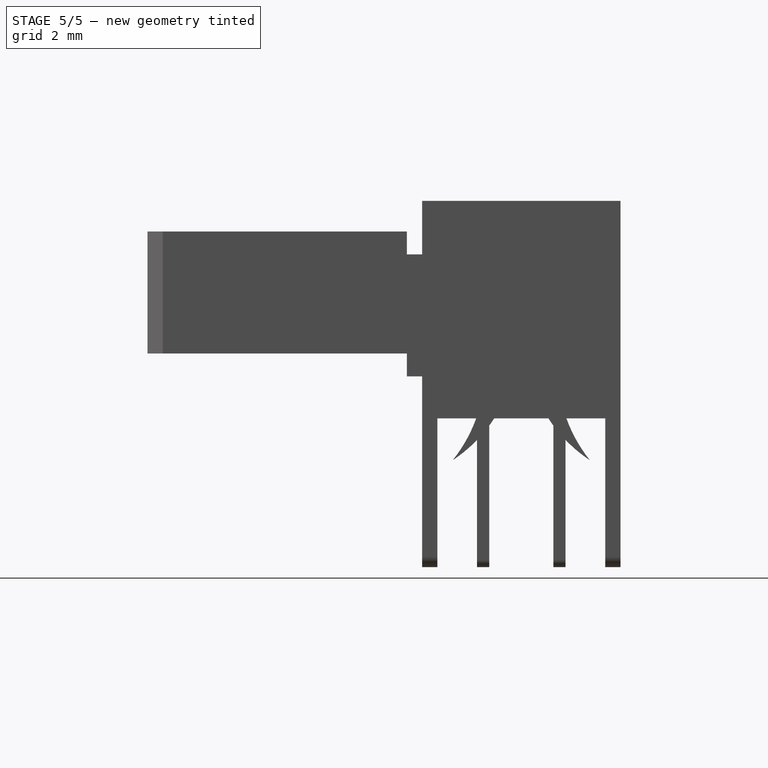
[diagram: stage 5 of 5 — right view after this stage's code; geometry added in this stage tinted green]
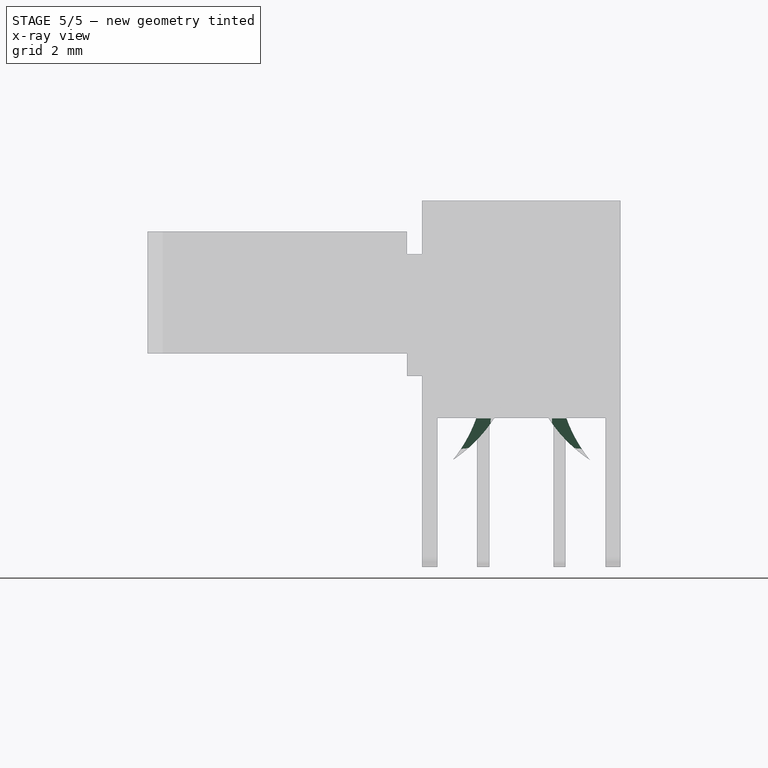
[diagram: stage 5 of 5 — x-ray composite at the right view; earlier geometry ghosted, this stage's added geometry solid]
FEATURE [Sketcher::SketchObject] Sketch005
  ExternalGeometry = -> [Pad002]
  Placement = pos=(0,0,6.75) rot=(1,0,0;3.14159rad)
  Support = -> Pad002 [Face38]
  sketch-geometry (4):
    g0: LineSegment StartX=0.5 StartY=-0.5 StartZ=0 EndX=13.3 EndY=-0.5 EndZ=0
    g1: LineSegment StartX=13.3 StartY=-0.5 StartZ=0 EndX=13.3 EndY=-6 EndZ=0
    g2: LineSegment StartX=13.3 StartY=-6 StartZ=0 EndX=0.5 EndY=-6 EndZ=0
    g3: LineSegment StartX=0.5 StartY=-6 StartZ=0 EndX=0.5 EndY=-0.5 EndZ=0
  constraints (9):
    c: Coincident(g0,g-3)
    c: Coincident(g0,g-4)
    c: Coincident(g0,g1)
    c: Coincident(g1,g-5)
    c: Coincident(g1,g2)
    c: Coincident(g2,g-6)
    c: Coincident(g2,g3)
    c: PointOnObject(g3,g0)
    c: Vertical(g3)
FEATURE [PartDesign::Pocket] Pocket002  label="Casing"
  Length = 5
  Reversed = true
  Sketch = -> Sketch005
  Type = 1
FEATURE [PartDesign::Pocket] Pocket003
  Length = 5
  Reversed = true
  Sketch = -> Sketch005
  Type = 1
FEATURE [Part::Cut] Cut  label="Base"
  Base = -> Pocket004
  Tool = -> Pocket003
FEATURE [Part::MultiFuse] Fusion  label="SW_E-Switch_EG2219_DPDT_Angled"
  Shapes = -> [Pocket002,Cut,Cut001,Array]
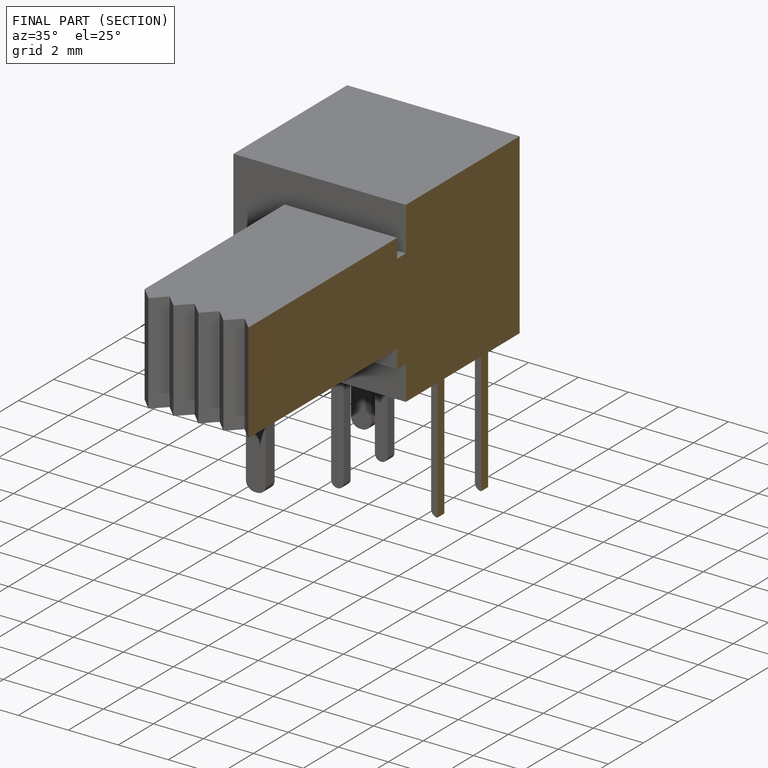
[diagram: finished part — half-section view (interior)]
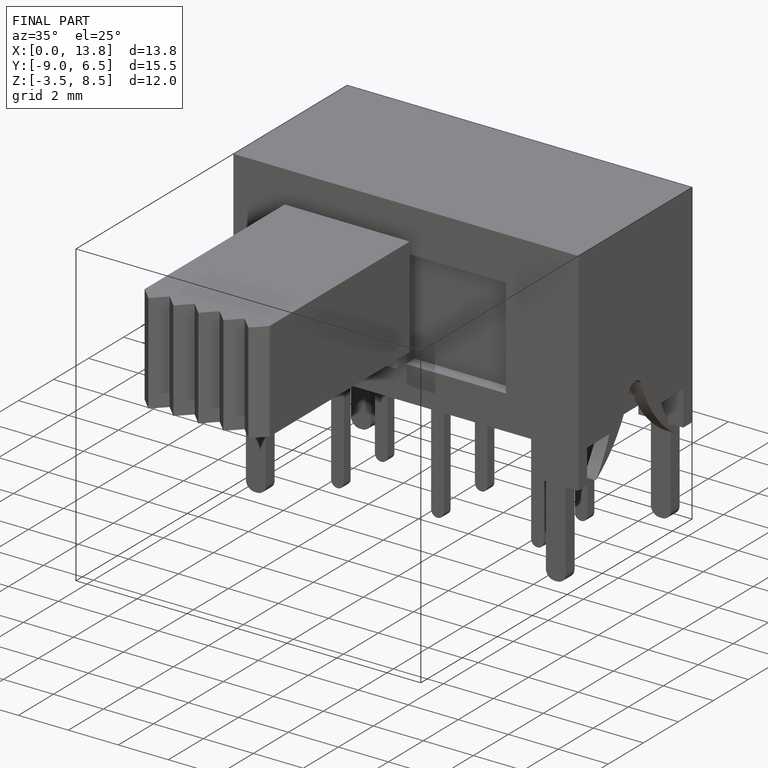
[diagram: finished part — iso view with bounding-box wireframe]
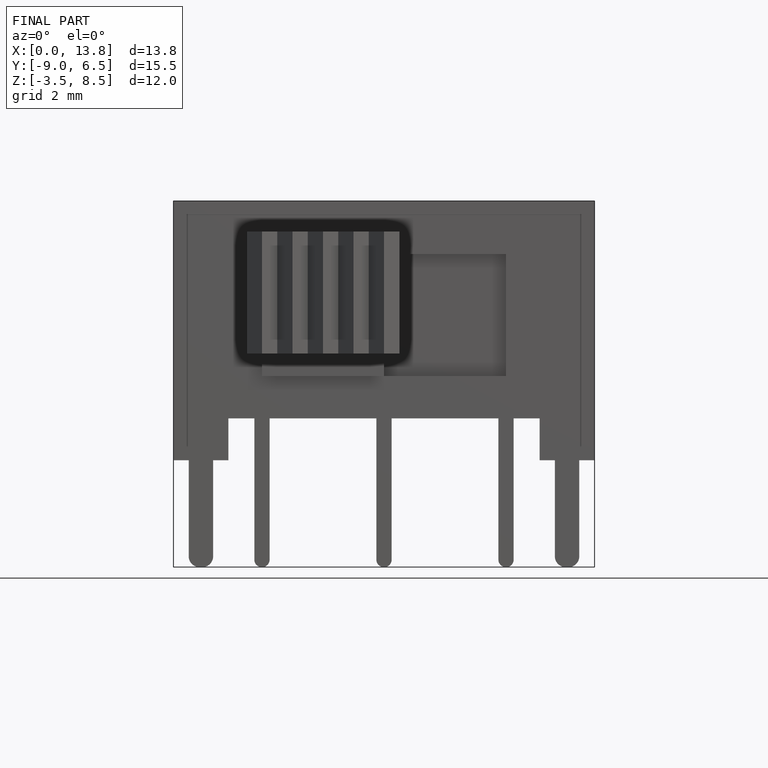
[diagram: finished part — front view with bounding-box wireframe]
